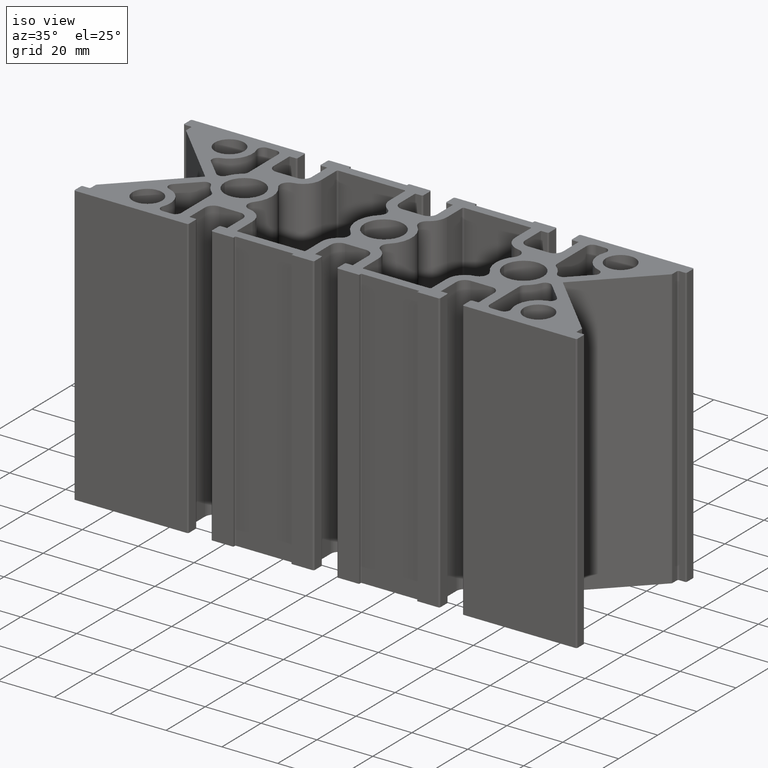
[diagram: clean part render]
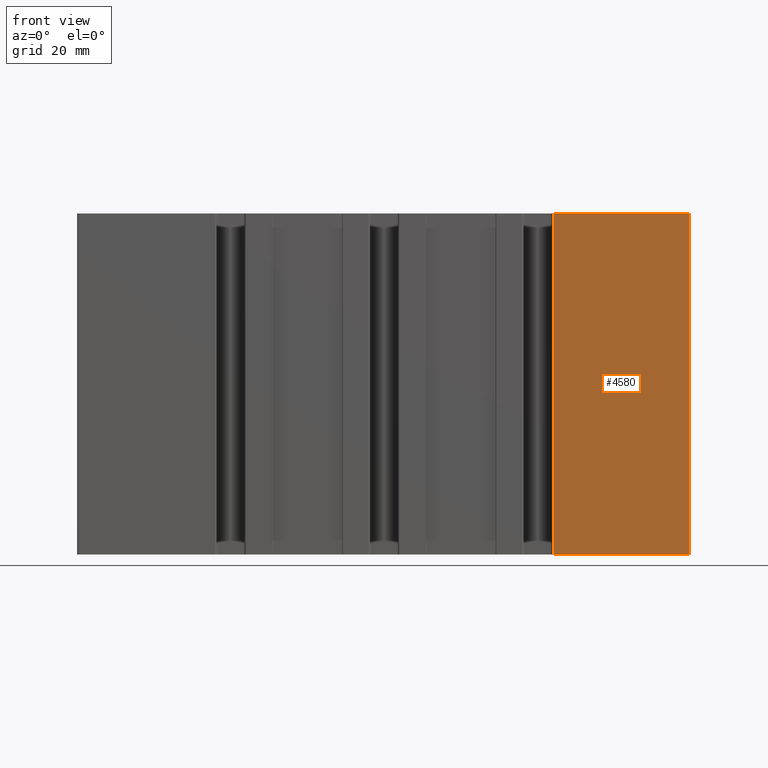
[diagram: tour spotlight — one face highlighted and labeled with its STEP entity id]
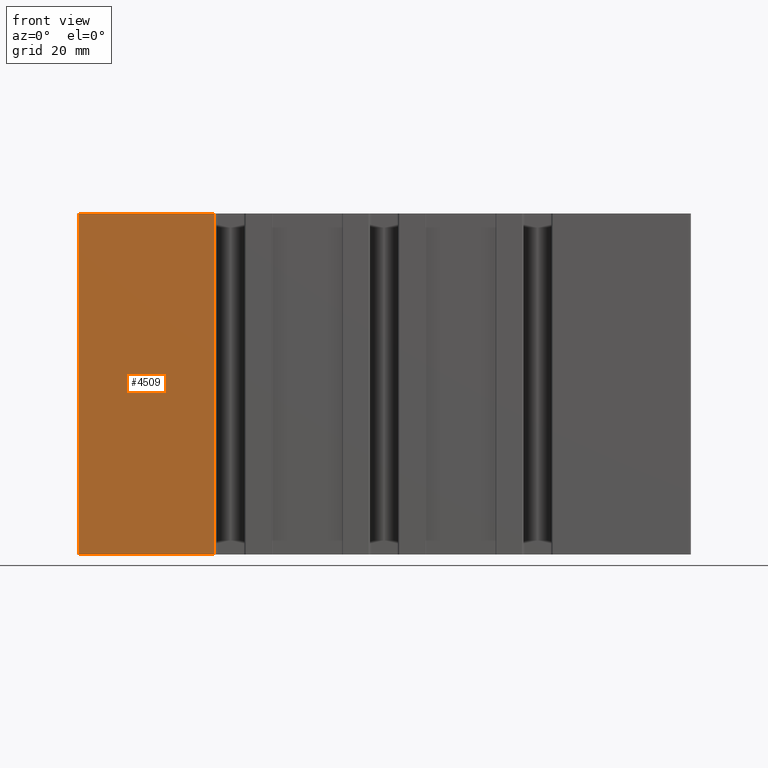
[diagram: tour spotlight — one face highlighted and labeled with its STEP entity id]
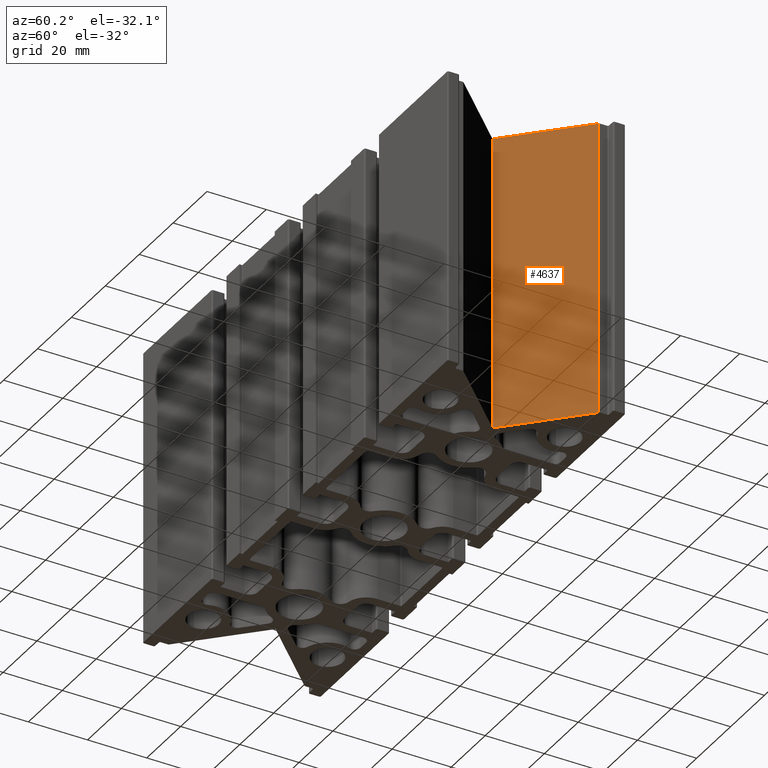
[diagram: tour spotlight — one face highlighted and labeled with its STEP entity id]
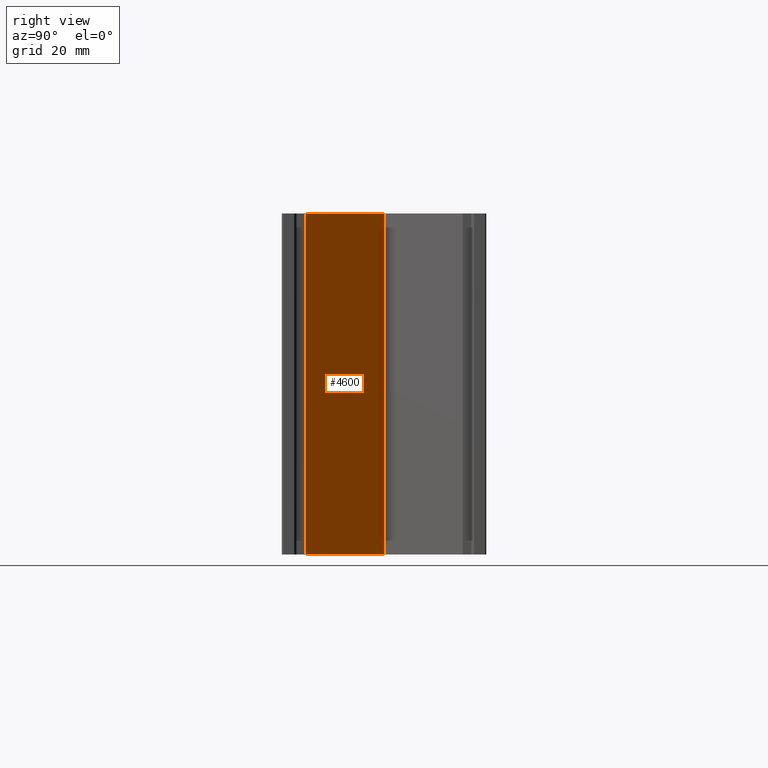
[diagram: tour spotlight — one face highlighted and labeled with its STEP entity id]
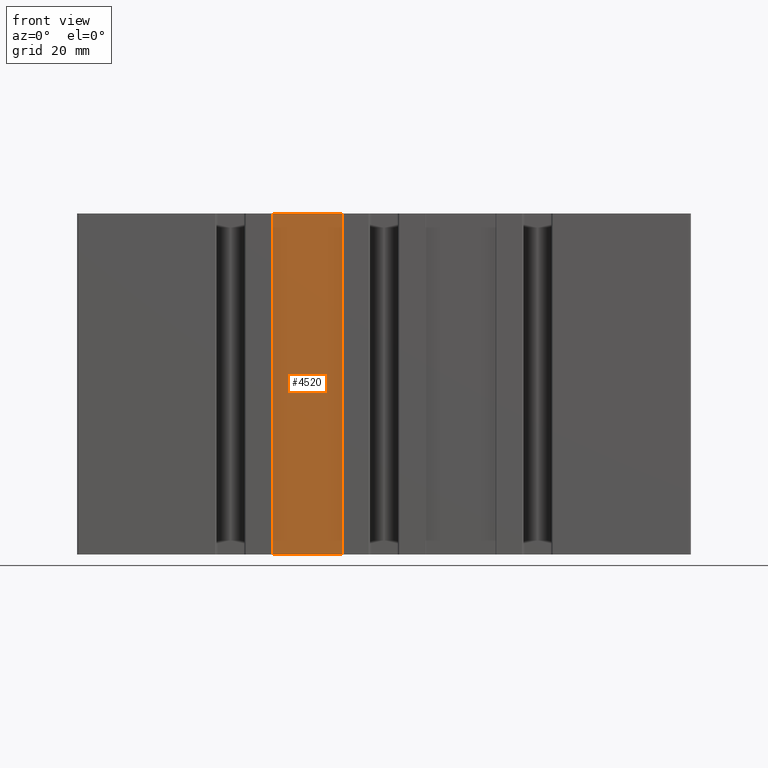
[diagram: tour spotlight — one face highlighted and labeled with its STEP entity id]
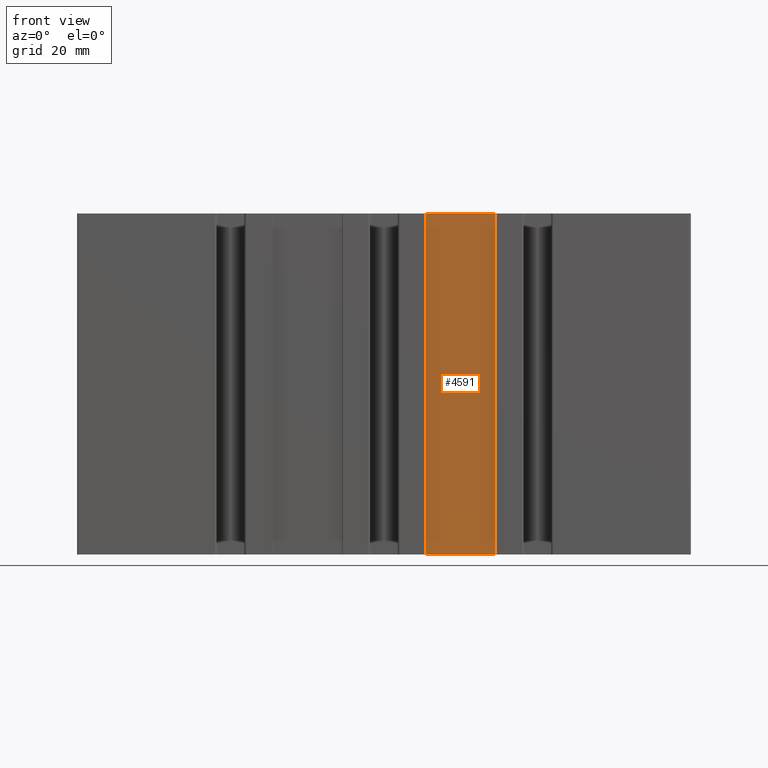
[diagram: tour spotlight — one face highlighted and labeled with its STEP entity id]
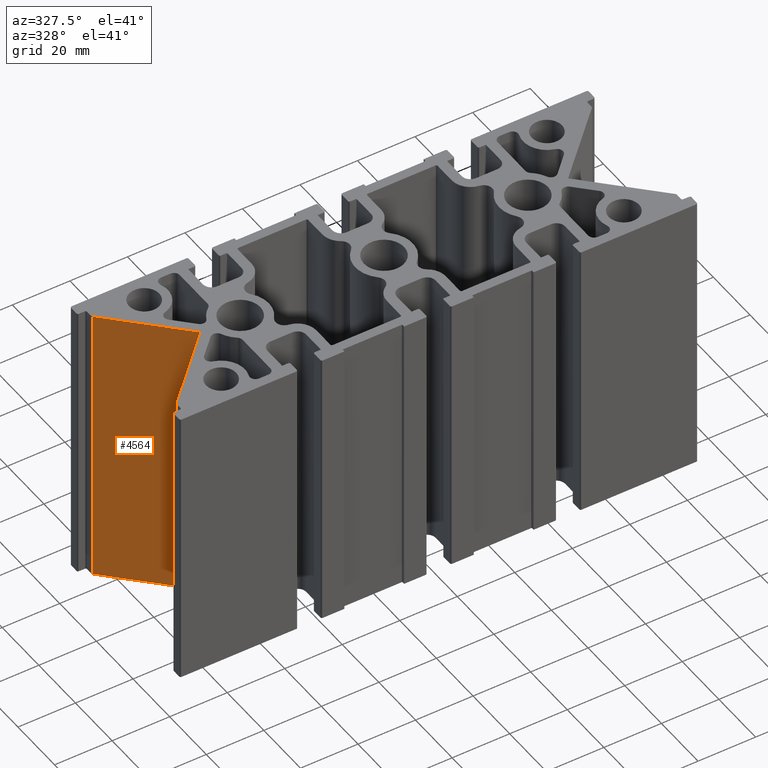
[diagram: tour spotlight — one face highlighted and labeled with its STEP entity id]
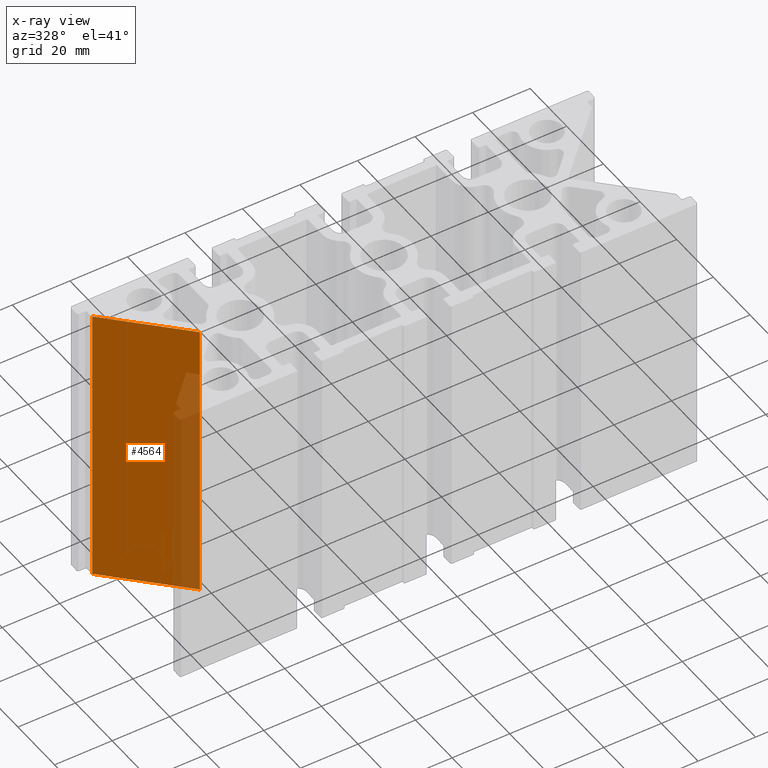
[diagram: x-ray of the same camera — body ghosted, this tour face saturated]
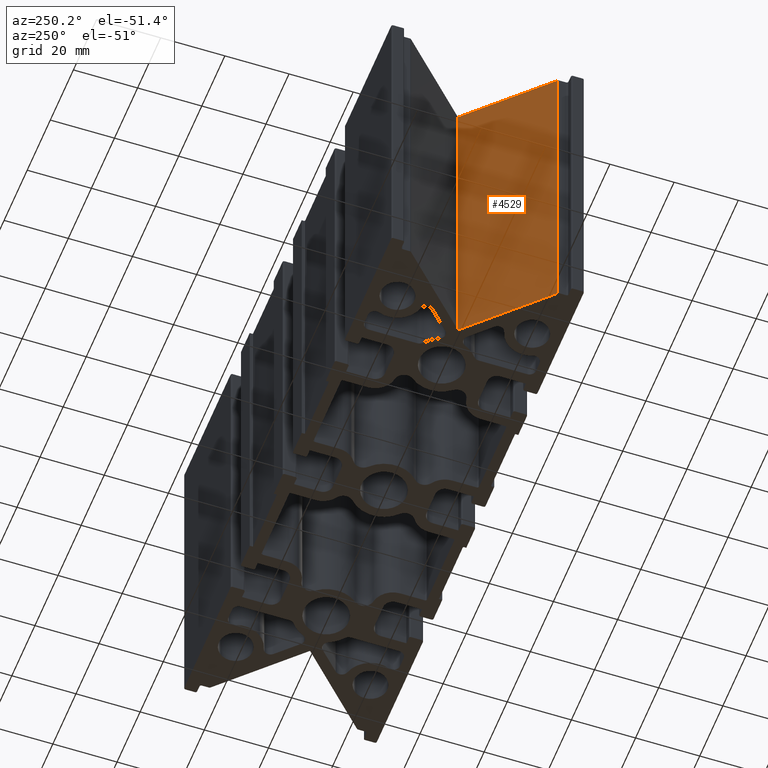
[diagram: tour spotlight — one face highlighted and labeled with its STEP entity id]
A machine part: a face-by-face anatomy tour. The part has 231 B-rep faces; the first image is the clean iso view, then the 8 largest visible faces are spotlighted one at a time (largest first), each with its STEP entity span.

Face 1 — front view, entity #4580. In plain terms, the highlighted planar face has unit normal (0, 1, 0).
Definition (entity closure, byte-faithful):
#113=PLANE('',#5058);
#322=FACE_OUTER_BOUND('',#566,.T.);
#566=EDGE_LOOP('',(#3827,#3828,#3829,#3830));
#745=LINE('',#6920,#1186);
#989=LINE('',#7689,#1430);
#990=LINE('',#7693,#1431);
#991=LINE('',#7694,#1432);
#1186=VECTOR('',#5452,10.);
#1430=VECTOR('',#6284,10.);
#1431=VECTOR('',#6289,10.);
#1432=VECTOR('',#6290,10.);
#1937=VERTEX_POINT('',#6917);
#1938=VERTEX_POINT('',#6919);
#2169=VERTEX_POINT('',#7688);
#2170=VERTEX_POINT('',#7692);
#2413=EDGE_CURVE('',#1938,#1937,#745,.T.);
#2798=EDGE_CURVE('',#2169,#1938,#989,.T.);
#2800=EDGE_CURVE('',#1937,#2170,#990,.T.);
#2801=EDGE_CURVE('',#2169,#2170,#991,.T.);
#3827=ORIENTED_EDGE('',*,*,#2798,.T.);
#3828=ORIENTED_EDGE('',*,*,#2413,.T.);
#3829=ORIENTED_EDGE('',*,*,#2800,.T.);
#3830=ORIENTED_EDGE('',*,*,#2801,.F.);
#4580=ADVANCED_FACE('',(#322),#113,.F.);
#5058=AXIS2_PLACEMENT_3D('',#7691,#6287,#6288);
#5452=DIRECTION('',(-1.,9.46938579092562E-17,0.));
#6284=DIRECTION('',(0.,0.,1.));
#6287=DIRECTION('center_axis',(9.46938579092562E-17,1.,0.));
#6288=DIRECTION('ref_axis',(-1.,9.46938579092562E-17,0.));
#6289=DIRECTION('',(0.,0.,-1.));
#6290=DIRECTION('',(-1.,9.46938579092562E-17,0.));
#6917=CARTESIAN_POINT('',(49.6,-30.,100.));
#6919=CARTESIAN_POINT('',(89.5,-30.,100.));
#6920=CARTESIAN_POINT('',(90.,-30.,100.));
#7688=CARTESIAN_POINT('',(89.5,-30.,0.));
#7689=CARTESIAN_POINT('',(89.5,-30.,0.));
#7691=CARTESIAN_POINT('Origin',(90.,-30.,0.));
#7692=CARTESIAN_POINT('',(49.6,-30.,0.));
#7693=CARTESIAN_POINT('',(49.6,-30.,0.));
#7694=CARTESIAN_POINT('',(90.,-30.,0.));

Face 2 — front view, entity #4509. In plain terms, the highlighted planar face has unit normal (0, -1, 0).
Definition (entity closure, byte-faithful):
#72=PLANE('',#4957);
#251=FACE_OUTER_BOUND('',#495,.T.);
#495=EDGE_LOOP('',(#3543,#3544,#3545,#3546));
#713=LINE('',#6812,#1154);
#877=LINE('',#7406,#1318);
#878=LINE('',#7409,#1319);
#879=LINE('',#7410,#1320);
#1154=VECTOR('',#5376,10.);
#1318=VECTOR('',#5972,10.);
#1319=VECTOR('',#5975,10.);
#1320=VECTOR('',#5976,10.);
#1883=VERTEX_POINT('',#6809);
#1884=VERTEX_POINT('',#6811);
#2098=VERTEX_POINT('',#7404);
#2099=VERTEX_POINT('',#7408);
#2359=EDGE_CURVE('',#1883,#1884,#713,.T.);
#2657=EDGE_CURVE('',#2098,#1883,#877,.T.);
#2658=EDGE_CURVE('',#2098,#2099,#878,.T.);
#2659=EDGE_CURVE('',#1884,#2099,#879,.T.);
#3543=ORIENTED_EDGE('',*,*,#2657,.F.);
#3544=ORIENTED_EDGE('',*,*,#2658,.T.);
#3545=ORIENTED_EDGE('',*,*,#2659,.F.);
#3546=ORIENTED_EDGE('',*,*,#2359,.F.);
#4509=ADVANCED_FACE('',(#251),#72,.T.);
#4957=AXIS2_PLACEMENT_3D('',#7407,#5973,#5974);
#5376=DIRECTION('',(1.,9.46938579092561E-17,0.));
#5972=DIRECTION('',(0.,0.,1.));
#5973=DIRECTION('center_axis',(9.46938579092561E-17,-1.,0.));
#5974=DIRECTION('ref_axis',(1.,9.46938579092561E-17,0.));
#5975=DIRECTION('',(1.,9.46938579092561E-17,0.));
#5976=DIRECTION('',(0.,0.,-1.));
#6809=CARTESIAN_POINT('',(-89.5,-30.,100.));
#6811=CARTESIAN_POINT('',(-49.6,-30.,100.));
#6812=CARTESIAN_POINT('',(-90.,-30.,100.));
#7404=CARTESIAN_POINT('',(-89.5,-30.,0.));
#7406=CARTESIAN_POINT('',(-89.5,-30.,0.));
#7407=CARTESIAN_POINT('Origin',(-90.,-30.,0.));
#7408=CARTESIAN_POINT('',(-49.6,-30.,0.));
#7409=CARTESIAN_POINT('',(-90.,-30.,0.));
#7410=CARTESIAN_POINT('',(-49.6,-30.,0.));

Face 3 — auxiliary view, entity #4637. In plain terms, the highlighted planar face has unit normal (0.7071, -0.7071, 0).
Definition (entity closure, byte-faithful):
#148=PLANE('',#5137);
#379=FACE_OUTER_BOUND('',#636,.T.);
#636=EDGE_LOOP('',(#4280,#4281,#4282,#4283));
#750=LINE('',#6937,#1191);
#1021=LINE('',#7768,#1462);
#1032=LINE('',#7797,#1473);
#1036=LINE('',#7806,#1477);
#1191=VECTOR('',#5465,10.);
#1462=VECTOR('',#6374,10.);
#1473=VECTOR('',#6405,10.);
#1477=VECTOR('',#6415,10.);
#1806=VERTEX_POINT('',#6655);
#1946=VERTEX_POINT('',#6935);
#2187=VERTEX_POINT('',#7766);
#2195=VERTEX_POINT('',#7796);
#2422=EDGE_CURVE('',#1946,#1806,#750,.T.);
#2838=EDGE_CURVE('',#2187,#1946,#1021,.T.);
#2852=EDGE_CURVE('',#1806,#2195,#1032,.T.);
#2857=EDGE_CURVE('',#2187,#2195,#1036,.T.);
#4280=ORIENTED_EDGE('',*,*,#2852,.F.);
#4281=ORIENTED_EDGE('',*,*,#2422,.F.);
#4282=ORIENTED_EDGE('',*,*,#2838,.F.);
#4283=ORIENTED_EDGE('',*,*,#2857,.T.);
#4637=ADVANCED_FACE('',(#379),#148,.T.);
#5137=AXIS2_PLACEMENT_3D('',#7911,#6533,#6534);
#5465=DIRECTION('',(0.707106781186546,0.707106781186549,0.));
#6374=DIRECTION('',(0.,0.,1.));
#6405=DIRECTION('',(0.,0.,-1.));
#6415=DIRECTION('',(0.707106781186546,0.707106781186549,0.));
#6533=DIRECTION('center_axis',(0.707106781186549,-0.707106781186546,0.));
#6534=DIRECTION('ref_axis',(0.707106781186546,0.707106781186549,0.));
#6655=CARTESIAN_POINT('',(86.8535533905933,22.8535533905933,100.));
#6935=CARTESIAN_POINT('',(64.,3.91886975727153E-15,100.));
#6937=CARTESIAN_POINT('',(64.,4.44089209850063E-15,100.));
#7766=CARTESIAN_POINT('',(64.,3.91886975727153E-15,0.));
#7768=CARTESIAN_POINT('',(64.,3.91886975727153E-15,0.));
#7796=CARTESIAN_POINT('',(86.8535533905933,22.8535533905933,0.));
#7797=CARTESIAN_POINT('',(86.8535533905933,22.8535533905933,0.));
#7806=CARTESIAN_POINT('',(64.,4.44089209850063E-15,0.));
#7911=CARTESIAN_POINT('Origin',(64.,4.44089209850063E-15,0.));

Face 4 — right view, entity #4600. In plain terms, the highlighted planar face has unit normal (-0.7071, -0.7071, 0).
Definition (entity closure, byte-faithful):
#126=PLANE('',#5085);
#342=FACE_OUTER_BOUND('',#586,.T.);
#586=EDGE_LOOP('',(#3907,#3908,#3909,#3910));
#749=LINE('',#6936,#1190);
#976=LINE('',#7656,#1417);
#1020=LINE('',#7767,#1461);
#1021=LINE('',#7768,#1462);
#1190=VECTOR('',#5464,10.);
#1417=VECTOR('',#6249,10.);
#1461=VECTOR('',#6373,10.);
#1462=VECTOR('',#6374,10.);
#1945=VERTEX_POINT('',#6933);
#1946=VERTEX_POINT('',#6935);
#2160=VERTEX_POINT('',#7654);
#2187=VERTEX_POINT('',#7766);
#2421=EDGE_CURVE('',#1946,#1945,#749,.T.);
#2782=EDGE_CURVE('',#1945,#2160,#976,.T.);
#2837=EDGE_CURVE('',#2187,#2160,#1020,.T.);
#2838=EDGE_CURVE('',#2187,#1946,#1021,.T.);
#3907=ORIENTED_EDGE('',*,*,#2782,.T.);
#3908=ORIENTED_EDGE('',*,*,#2837,.F.);
#3909=ORIENTED_EDGE('',*,*,#2838,.T.);
#3910=ORIENTED_EDGE('',*,*,#2421,.T.);
#4600=ADVANCED_FACE('',(#342),#126,.F.);
#5085=AXIS2_PLACEMENT_3D('',#7765,#6371,#6372);
#5464=DIRECTION('',(0.707106781186547,-0.707106781186548,0.));
#6249=DIRECTION('',(0.,0.,-1.));
#6371=DIRECTION('center_axis',(-0.707106781186548,-0.707106781186547,0.));
#6372=DIRECTION('ref_axis',(0.707106781186547,-0.707106781186548,0.));
#6373=DIRECTION('',(0.707106781186547,-0.707106781186548,0.));
#6374=DIRECTION('',(0.,0.,1.));
#6933=CARTESIAN_POINT('',(86.8535533905933,-22.8535533905933,100.));
#6935=CARTESIAN_POINT('',(64.,3.91886975727153E-15,100.));
#6936=CARTESIAN_POINT('',(64.,3.39684741604243E-15,100.));
#7654=CARTESIAN_POINT('',(86.8535533905933,-22.8535533905933,0.));
#7656=CARTESIAN_POINT('',(86.8535533905933,-22.8535533905933,0.));
#7765=CARTESIAN_POINT('Origin',(64.,3.39684741604243E-15,0.));
#7766=CARTESIAN_POINT('',(64.,3.91886975727153E-15,0.));
#7767=CARTESIAN_POINT('',(64.,3.39684741604243E-15,0.));
#7768=CARTESIAN_POINT('',(64.,3.91886975727153E-15,0.));

Face 5 — front view, entity #4520. In plain terms, the highlighted planar face has unit normal (0, -1, 0).
Definition (entity closure, byte-faithful):
#77=PLANE('',#4974);
#262=FACE_OUTER_BOUND('',#506,.T.);
#506=EDGE_LOOP('',(#3587,#3588,#3589,#3590));
#723=LINE('',#6846,#1164);
#895=LINE('',#7455,#1336);
#897=LINE('',#7459,#1338);
#898=LINE('',#7460,#1339);
#1164=VECTOR('',#5400,10.);
#1336=VECTOR('',#6024,10.);
#1338=VECTOR('',#6028,10.);
#1339=VECTOR('',#6029,10.);
#1900=VERTEX_POINT('',#6843);
#1901=VERTEX_POINT('',#6845);
#2112=VERTEX_POINT('',#7453);
#2113=VERTEX_POINT('',#7458);
#2376=EDGE_CURVE('',#1900,#1901,#723,.T.);
#2681=EDGE_CURVE('',#2112,#1900,#895,.T.);
#2683=EDGE_CURVE('',#2112,#2113,#897,.T.);
#2684=EDGE_CURVE('',#1901,#2113,#898,.T.);
#3587=ORIENTED_EDGE('',*,*,#2681,.F.);
#3588=ORIENTED_EDGE('',*,*,#2683,.T.);
#3589=ORIENTED_EDGE('',*,*,#2684,.F.);
#3590=ORIENTED_EDGE('',*,*,#2376,.F.);
#4520=ADVANCED_FACE('',(#262),#77,.T.);
#4974=AXIS2_PLACEMENT_3D('',#7457,#6026,#6027);
#5400=DIRECTION('',(1.,9.10397478977946E-17,0.));
#6024=DIRECTION('',(0.,0.,1.));
#6026=DIRECTION('center_axis',(9.10397478977946E-17,-1.,0.));
#6027=DIRECTION('ref_axis',(1.,9.10397478977946E-17,0.));
#6028=DIRECTION('',(1.,9.10397478977946E-17,0.));
#6029=DIRECTION('',(0.,0.,-1.));
#6843=CARTESIAN_POINT('',(-32.65,-29.,100.));
#6845=CARTESIAN_POINT('',(-12.35,-29.,100.));
#6846=CARTESIAN_POINT('',(-32.9,-29.,100.));
#7453=CARTESIAN_POINT('',(-32.65,-29.,0.));
#7455=CARTESIAN_POINT('',(-32.65,-29.,0.));
#7457=CARTESIAN_POINT('Origin',(-32.9,-29.,0.));
#7458=CARTESIAN_POINT('',(-12.35,-29.,0.));
#7459=CARTESIAN_POINT('',(-32.9,-29.,0.));
#7460=CARTESIAN_POINT('',(-12.35,-29.,0.));

Face 6 — front view, entity #4591. In plain terms, the highlighted planar face has unit normal (0, 1, 0).
Definition (entity closure, byte-faithful):
#118=PLANE('',#5075);
#333=FACE_OUTER_BOUND('',#577,.T.);
#577=EDGE_LOOP('',(#3871,#3872,#3873,#3874));
#735=LINE('',#6886,#1176);
#1008=LINE('',#7740,#1449);
#1009=LINE('',#7743,#1450);
#1010=LINE('',#7744,#1451);
#1176=VECTOR('',#5428,10.);
#1449=VECTOR('',#6339,10.);
#1450=VECTOR('',#6342,10.);
#1451=VECTOR('',#6343,10.);
#1920=VERTEX_POINT('',#6883);
#1921=VERTEX_POINT('',#6885);
#2183=VERTEX_POINT('',#7737);
#2184=VERTEX_POINT('',#7742);
#2396=EDGE_CURVE('',#1921,#1920,#735,.T.);
#2824=EDGE_CURVE('',#2183,#1921,#1008,.T.);
#2825=EDGE_CURVE('',#1920,#2184,#1009,.T.);
#2826=EDGE_CURVE('',#2183,#2184,#1010,.T.);
#3871=ORIENTED_EDGE('',*,*,#2824,.T.);
#3872=ORIENTED_EDGE('',*,*,#2396,.T.);
#3873=ORIENTED_EDGE('',*,*,#2825,.T.);
#3874=ORIENTED_EDGE('',*,*,#2826,.F.);
#4591=ADVANCED_FACE('',(#333),#118,.F.);
#5075=AXIS2_PLACEMENT_3D('',#7741,#6340,#6341);
#5428=DIRECTION('',(-1.,9.10397478977946E-17,0.));
#6339=DIRECTION('',(0.,0.,1.));
#6340=DIRECTION('center_axis',(9.10397478977946E-17,1.,0.));
#6341=DIRECTION('ref_axis',(-1.,9.10397478977946E-17,0.));
#6342=DIRECTION('',(0.,0.,-1.));
#6343=DIRECTION('',(-1.,9.10397478977946E-17,0.));
#6883=CARTESIAN_POINT('',(12.35,-29.,100.));
#6885=CARTESIAN_POINT('',(32.65,-29.,100.));
#6886=CARTESIAN_POINT('',(32.9,-29.,100.));
#7737=CARTESIAN_POINT('',(32.65,-29.,0.));
#7740=CARTESIAN_POINT('',(32.65,-29.,0.));
#7741=CARTESIAN_POINT('Origin',(32.9,-29.,0.));
#7742=CARTESIAN_POINT('',(12.35,-29.,0.));
#7743=CARTESIAN_POINT('',(12.35,-29.,0.));
#7744=CARTESIAN_POINT('',(32.9,-29.,0.));

Face 7 — auxiliary view, entity #4564. An x-ray twin of the same camera follows (body ghosted, this face saturated) — the face is partly hidden behind the body. In plain terms, the highlighted planar face has unit normal (0.7071, 0.7071, 0).
Definition (entity closure, byte-faithful):
#105=PLANE('',#5034);
#306=FACE_OUTER_BOUND('',#550,.T.);
#550=EDGE_LOOP('',(#3763,#3764,#3765,#3766));
#708=LINE('',#6794,#1149);
#908=LINE('',#7483,#1349);
#920=LINE('',#7514,#1361);
#964=LINE('',#7624,#1405);
#1149=VECTOR('',#5363,10.);
#1349=VECTOR('',#6059,10.);
#1361=VECTOR('',#6091,10.);
#1405=VECTOR('',#6215,10.);
#1874=VERTEX_POINT('',#6791);
#1875=VERTEX_POINT('',#6793);
#2116=VERTEX_POINT('',#7482);
#2125=VERTEX_POINT('',#7512);
#2350=EDGE_CURVE('',#1875,#1874,#708,.T.);
#2695=EDGE_CURVE('',#2116,#1875,#908,.T.);
#2711=EDGE_CURVE('',#1874,#2125,#920,.T.);
#2766=EDGE_CURVE('',#2116,#2125,#964,.T.);
#3763=ORIENTED_EDGE('',*,*,#2711,.T.);
#3764=ORIENTED_EDGE('',*,*,#2766,.F.);
#3765=ORIENTED_EDGE('',*,*,#2695,.T.);
#3766=ORIENTED_EDGE('',*,*,#2350,.T.);
#4564=ADVANCED_FACE('',(#306),#105,.F.);
#5034=AXIS2_PLACEMENT_3D('',#7623,#6213,#6214);
#5363=DIRECTION('',(-0.707106781186546,0.707106781186549,0.));
#6059=DIRECTION('',(0.,0.,1.));
#6091=DIRECTION('',(0.,0.,-1.));
#6213=DIRECTION('center_axis',(0.707106781186549,0.707106781186546,0.));
#6214=DIRECTION('ref_axis',(-0.707106781186546,0.707106781186549,0.));
#6215=DIRECTION('',(-0.707106781186546,0.707106781186549,0.));
#6791=CARTESIAN_POINT('',(-86.8535533905933,22.8535533905933,100.));
#6793=CARTESIAN_POINT('',(-64.,3.91886975727153E-15,100.));
#6794=CARTESIAN_POINT('',(-64.,4.44089209850063E-15,100.));
#7482=CARTESIAN_POINT('',(-64.,3.91886975727153E-15,0.));
#7483=CARTESIAN_POINT('',(-64.,3.91886975727153E-15,0.));
#7512=CARTESIAN_POINT('',(-86.8535533905933,22.8535533905933,0.));
#7514=CARTESIAN_POINT('',(-86.8535533905933,22.8535533905933,0.));
#7623=CARTESIAN_POINT('Origin',(-64.,4.44089209850063E-15,0.));
#7624=CARTESIAN_POINT('',(-64.,4.44089209850063E-15,0.));

Face 8 — auxiliary view, entity #4529. In plain terms, the highlighted planar face has unit normal (-0.7071, 0.7071, 0).
Definition (entity closure, byte-faithful):
#85=PLANE('',#4984);
#271=FACE_OUTER_BOUND('',#515,.T.);
#515=EDGE_LOOP('',(#3623,#3624,#3625,#3626));
#709=LINE('',#6796,#1150);
#863=LINE('',#7369,#1304);
#908=LINE('',#7483,#1349);
#909=LINE('',#7484,#1350);
#1150=VECTOR('',#5364,10.);
#1304=VECTOR('',#5932,10.);
#1349=VECTOR('',#6059,10.);
#1350=VECTOR('',#6060,10.);
#1875=VERTEX_POINT('',#6793);
#1876=VERTEX_POINT('',#6795);
#2088=VERTEX_POINT('',#7368);
#2116=VERTEX_POINT('',#7482);
#2351=EDGE_CURVE('',#1875,#1876,#709,.T.);
#2638=EDGE_CURVE('',#1876,#2088,#863,.T.);
#2695=EDGE_CURVE('',#2116,#1875,#908,.T.);
#2696=EDGE_CURVE('',#2116,#2088,#909,.T.);
#3623=ORIENTED_EDGE('',*,*,#2638,.F.);
#3624=ORIENTED_EDGE('',*,*,#2351,.F.);
#3625=ORIENTED_EDGE('',*,*,#2695,.F.);
#3626=ORIENTED_EDGE('',*,*,#2696,.T.);
#4529=ADVANCED_FACE('',(#271),#85,.T.);
#4984=AXIS2_PLACEMENT_3D('',#7481,#6057,#6058);
#5364=DIRECTION('',(-0.707106781186547,-0.707106781186548,0.));
#5932=DIRECTION('',(0.,0.,-1.));
#6057=DIRECTION('center_axis',(-0.707106781186548,0.707106781186547,0.));
#6058=DIRECTION('ref_axis',(-0.707106781186547,-0.707106781186548,0.));
#6059=DIRECTION('',(0.,0.,1.));
#6060=DIRECTION('',(-0.707106781186547,-0.707106781186548,0.));
#6793=CARTESIAN_POINT('',(-64.,3.91886975727153E-15,100.));
#6795=CARTESIAN_POINT('',(-86.8535533905933,-22.8535533905933,100.));
#6796=CARTESIAN_POINT('',(-64.,3.39684741604244E-15,100.));
#7368=CARTESIAN_POINT('',(-86.8535533905933,-22.8535533905933,0.));
#7369=CARTESIAN_POINT('',(-86.8535533905933,-22.8535533905933,0.));
#7481=CARTESIAN_POINT('Origin',(-64.,3.39684741604244E-15,0.));
#7482=CARTESIAN_POINT('',(-64.,3.91886975727153E-15,0.));
#7483=CARTESIAN_POINT('',(-64.,3.91886975727153E-15,0.));
#7484=CARTESIAN_POINT('',(-64.,3.39684741604244E-15,0.));